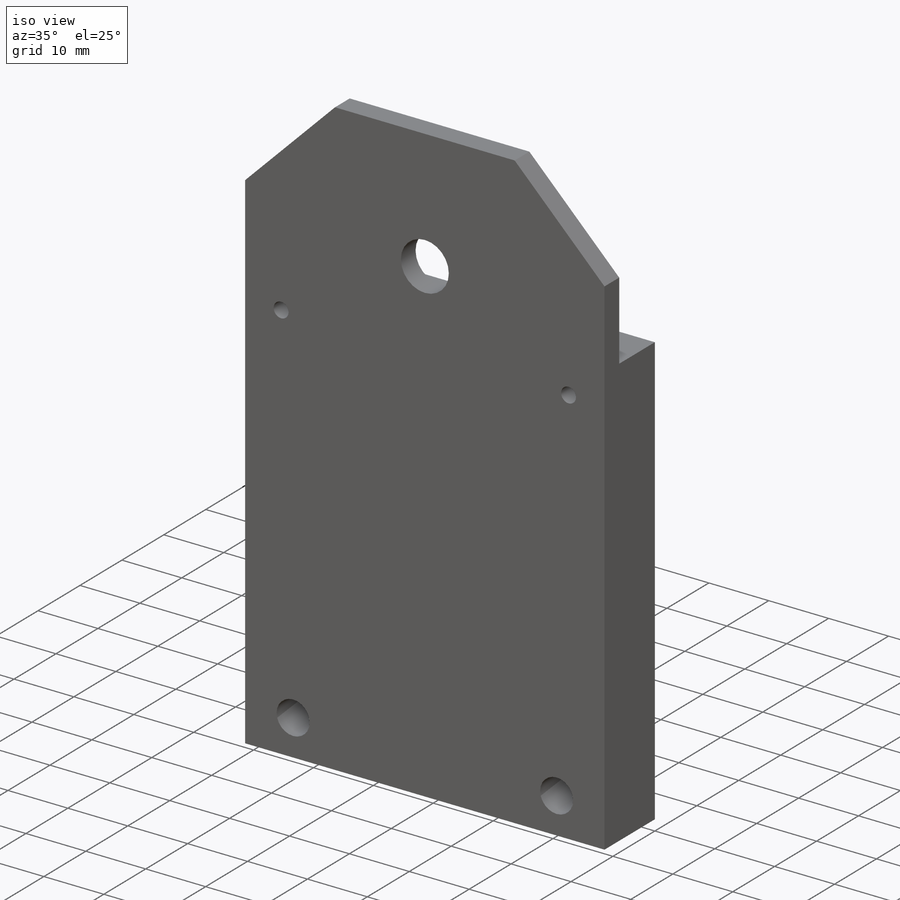
[diagram: iso view]
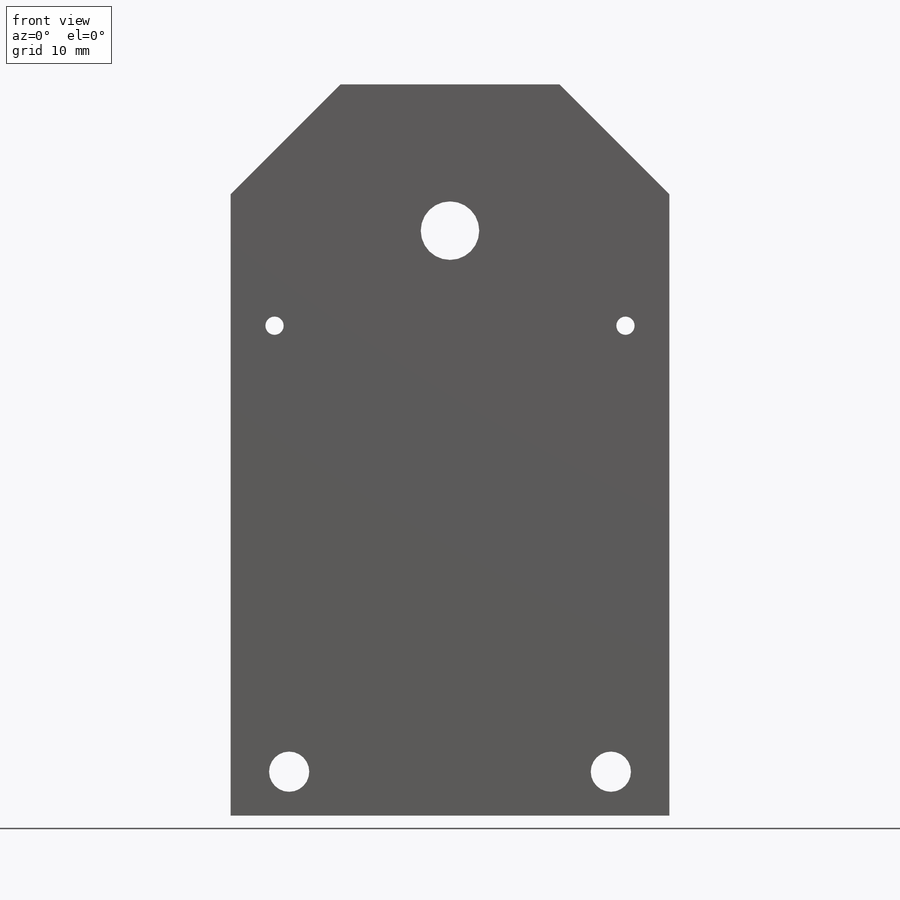
[diagram: front view]
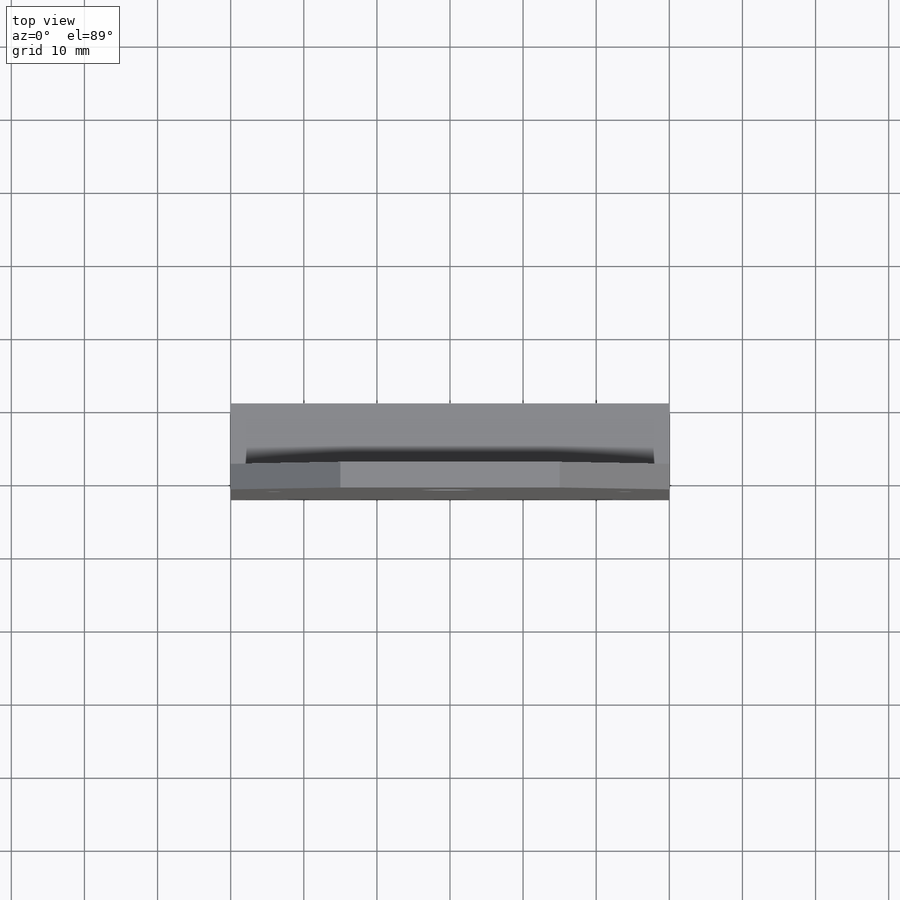
[diagram: top view]
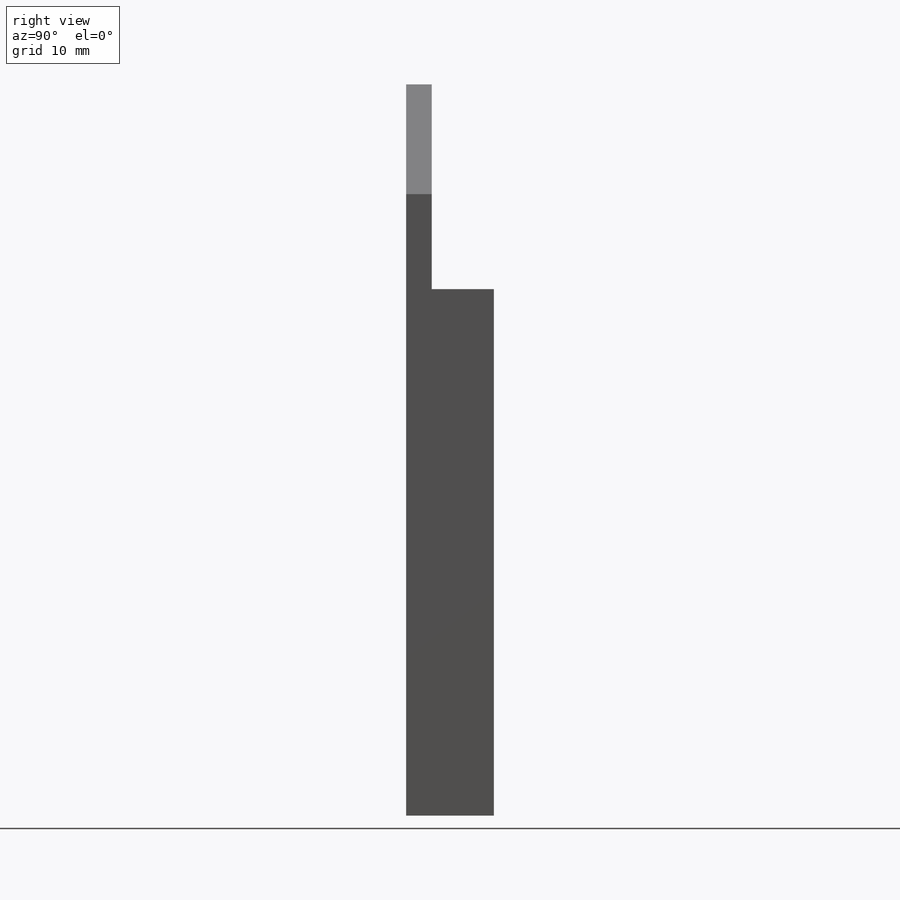
[diagram: right view]
SOLIDWORKS PART (.sldprt)
format: sldprt  version: not decoded by parser v0  size: 284,672 bytes
history: native  units: mm
features: sketch x11, hole x4, plane x3, cut_extrude x2, thread x2, material x1, extrude x1, chamfer x1 (+13 scaffold rows collapsed)
feature tree (38):
  scaffold x13  (default folders/planes/origin — collapsed)
  material  "3.1325 (EN-AW 2017A)"
  plane  "Plan de face"
  plane  "Plan de dessus"
  plane  "Plan de droite"
  sketch  "Esquisse2"  dims[D1=60.0mm D2=100.0mm]
  extrude  "Boss.-Extru.1"  Depth=12mm
  sketch  "Esquisse3"  dims[D1=20.0mm]
  cut_extrude  "Enlèv. mat.-Extru.1"  Depth=3.5mm
  sketch  "Esquisse5"  dims[D1=3.5mm D2=8.0mm]
  cut_extrude  "Enlèv. mat.-Extru.2"  [1 undecoded]
  hole  "Trou taraudé M31"  Diameter=2.5mm Depth=12mm
  sketch  "Esquisse7"  dims[D1=24.0mm D2=13.0mm]
  sketch  "Esquisse6"  dims[hole-wizard template sketch: 60 standard entries collapsed; hole parameters kept: c18.Profondeur du trou pour taraudage jusqu'au prochain=12.0mm]
  thread  "Filetage de perçage1"  Diameter=3mm  [1 undecoded]
  hole  "Trou taraudé M32"  Diameter=2.5mm Depth=12mm
  sketch  "Esquisse9"  dims[c1.D1=2.5mm c1.D2=8.0mm c1.D3=8.0mm c2.D1=0.0mm c2.D2=24.0mm c2.D3=13.0mm]
  sketch  "Esquisse8"  dims[hole-wizard template sketch: 60 standard entries collapsed; hole parameters kept: c18.Profondeur du trou pour taraudage jusqu'au prochain=12.0mm]
  thread  "Filetage de perçage2"  Diameter=3mm  [1 undecoded]
  hole  "Chambrage pour vis à tête hexagonale M51"  Diameter=5.5mm Depth=12mm
  sketch  "Esquisse15"  dims[D1=6.0mm D2=8.0mm]
  sketch  "Esquisse14"  dims[hole-wizard template sketch: 42 standard entries collapsed; hole parameters kept: c12.Profondeur du perçage jusqu'au prochain=12.0mm c12.Diamètre du chambrage=10.0mm c12.Profondeur du chambrage=5.0mm]
  hole  "Chambrage pour vis à tête hexagonale M52"  Diameter=5.5mm Depth=12mm
  sketch  "Esquisse17"  dims[D1=8.0mm D2=6.0mm]
  sketch  "Esquisse16"  dims[hole-wizard template sketch: 42 standard entries collapsed; hole parameters kept: c12.Profondeur du perçage jusqu'au prochain=12.0mm c12.Diamètre du chambrage=10.0mm c12.Profondeur du chambrage=5.0mm]
  chamfer  "Chanfrein1"  Distance=15mm Angle=45deg
decode coverage: 20 of 21 modeling features carry decoded parameters
note: ~ marks probable driven/reference dimensions
note: 3 parameter values undecoded
summary: Diameter pulled from absorbed wizard sketch
note: suppression state not decoded; provenance and decode notes live in map.json
